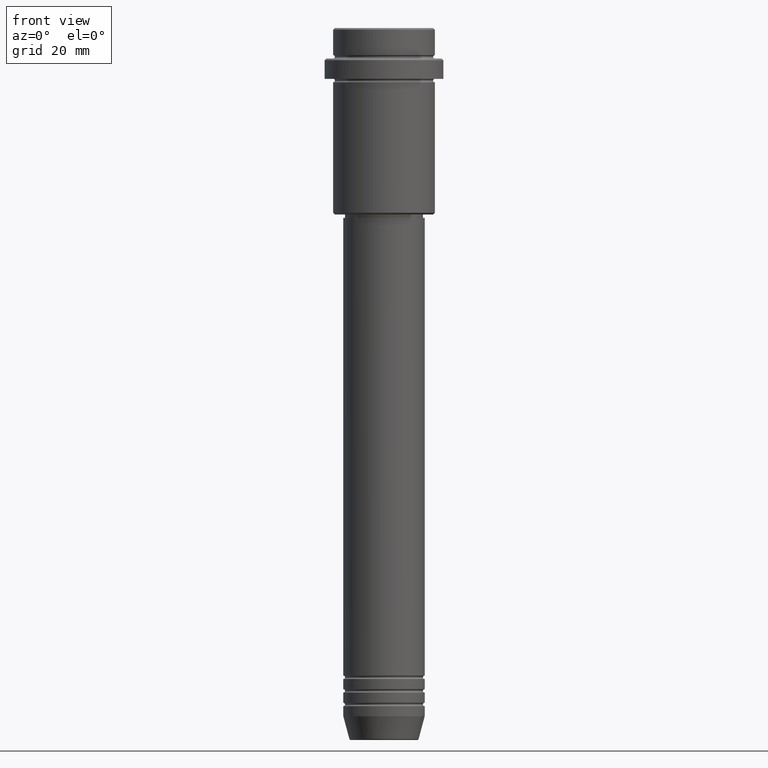
[diagram: clean part render]
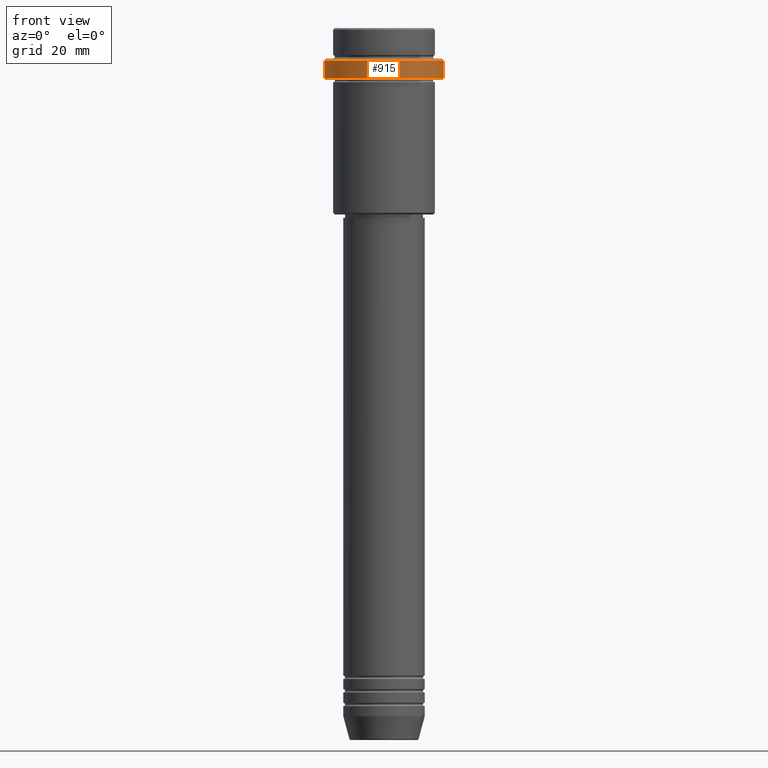
[diagram: same view with one face highlighted and labeled with its STEP entity id]
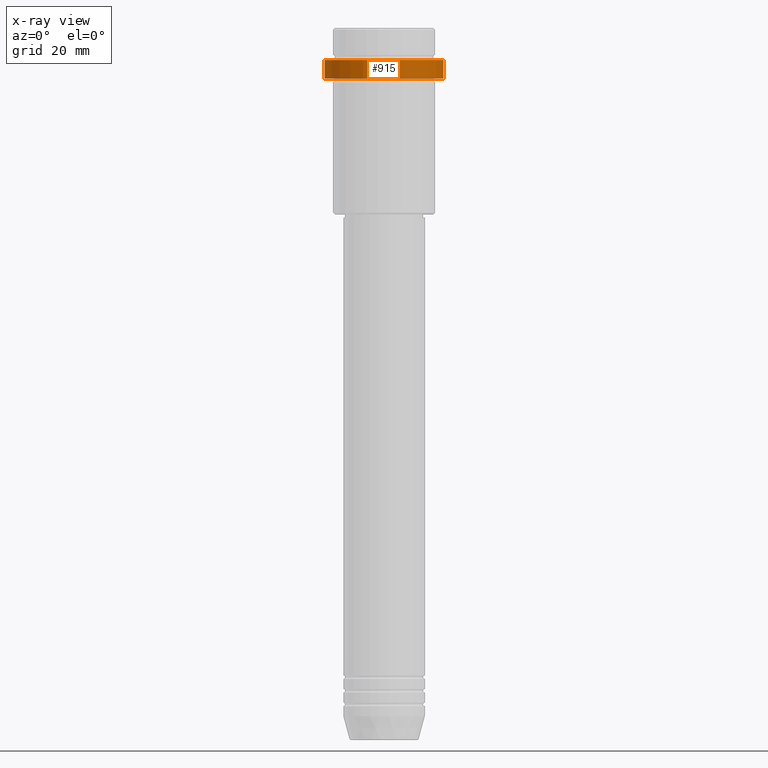
[diagram: x-ray of the same camera — body ghosted, the highlighted face saturated]
A machine part, front view. The second image highlights one B-rep face of the part: STEP entity #915.
The next image is the same camera in x-ray: the body ghosted, the highlighted face saturated — about 0% of this face is hidden behind the body in this view.
In plain terms, the highlighted cylindrical surface (partial cylindrical patch) has radius 17.5 mm, axis along (-0, -0, 1).
Its self-contained STEP definition (entity closure, byte-faithful):
#9 = DIRECTION ( 'NONE',  ( 1.000000000000000000, 0.000000000000000000, 0.000000000000000000 ) ) ;
#27 = EDGE_CURVE ( 'NONE', #432, #919, #208, .T. ) ;
#85 = CARTESIAN_POINT ( 'NONE',  ( 17.50000000000000000, 0.000000000000000000, -15.00000000000000178 ) ) ;
#112 = CARTESIAN_POINT ( 'NONE',  ( -17.50000000000000000, 2.143131898507868248E-15, -9.500000000000028422 ) ) ;
#147 = AXIS2_PLACEMENT_3D ( 'NONE', #1335, #814, #176 ) ;
#155 = VERTEX_POINT ( 'NONE', #1060 ) ;
#176 = DIRECTION ( 'NONE',  ( 1.000000000000000000, 0.000000000000000000, 0.000000000000000000 ) ) ;
#202 = DIRECTION ( 'NONE',  ( -0.000000000000000000, -0.000000000000000000, 1.000000000000000000 ) ) ;
#207 = CYLINDRICAL_SURFACE ( 'NONE', #286, 17.50000000000000000 ) ;
#208 = CIRCLE ( 'NONE', #147, 17.50000000000000000 ) ;
#226 = LINE ( 'NONE', #572, #776 ) ;
#286 = AXIS2_PLACEMENT_3D ( 'NONE', #418, #1187, #9 ) ;
#418 = CARTESIAN_POINT ( 'NONE',  ( 0.000000000000000000, 0.000000000000000000, 0.000000000000000000 ) ) ;
#432 = VERTEX_POINT ( 'NONE', #1364 ) ;
#572 = CARTESIAN_POINT ( 'NONE',  ( -17.50000000000000000, 2.143131898507868248E-15, 0.000000000000000000 ) ) ;
#587 = LINE ( 'NONE', #1102, #1070 ) ;
#624 = DIRECTION ( 'NONE',  ( 1.000000000000000000, 0.000000000000000000, 0.000000000000000000 ) ) ;
#641 = EDGE_CURVE ( 'NONE', #155, #919, #226, .T. ) ;
#646 = CARTESIAN_POINT ( 'NONE',  ( 0.000000000000000000, 0.000000000000000000, -15.00000000000000178 ) ) ;
#667 = DIRECTION ( 'NONE',  ( -0.000000000000000000, -0.000000000000000000, 1.000000000000000000 ) ) ;
#681 = EDGE_CURVE ( 'NONE', #155, #896, #1069, .T. ) ;
#751 = ORIENTED_EDGE ( 'NONE', *, *, #27, .T. ) ;
#755 = ORIENTED_EDGE ( 'NONE', *, *, #641, .F. ) ;
#765 = FACE_OUTER_BOUND ( 'NONE', #938, .T. ) ;
#776 = VECTOR ( 'NONE', #667, 1000.000000000000000 ) ;
#796 = ORIENTED_EDGE ( 'NONE', *, *, #681, .T. ) ;
#814 = DIRECTION ( 'NONE',  ( 0.000000000000000000, 0.000000000000000000, -1.000000000000000000 ) ) ;
#896 = VERTEX_POINT ( 'NONE', #85 ) ;
#903 = DIRECTION ( 'NONE',  ( -0.000000000000000000, -0.000000000000000000, 1.000000000000000000 ) ) ;
#915 = ADVANCED_FACE ( 'NONE', ( #765 ), #207, .T. ) ;
#919 = VERTEX_POINT ( 'NONE', #112 ) ;
#938 = EDGE_LOOP ( 'NONE', ( #755, #796, #1173, #751 ) ) ;
#939 = EDGE_CURVE ( 'NONE', #896, #432, #587, .T. ) ;
#1060 = CARTESIAN_POINT ( 'NONE',  ( -17.50000000000000000, 2.143131898507868248E-15, -15.00000000000000178 ) ) ;
#1069 = CIRCLE ( 'NONE', #1138, 17.50000000000000000 ) ;
#1070 = VECTOR ( 'NONE', #903, 1000.000000000000000 ) ;
#1102 = CARTESIAN_POINT ( 'NONE',  ( 17.50000000000000000, 0.000000000000000000, 0.000000000000000000 ) ) ;
#1138 = AXIS2_PLACEMENT_3D ( 'NONE', #646, #202, #624 ) ;
#1173 = ORIENTED_EDGE ( 'NONE', *, *, #939, .T. ) ;
#1187 = DIRECTION ( 'NONE',  ( -0.000000000000000000, -0.000000000000000000, 1.000000000000000000 ) ) ;
#1335 = CARTESIAN_POINT ( 'NONE',  ( 0.000000000000000000, 0.000000000000000000, -9.500000000000028422 ) ) ;
#1364 = CARTESIAN_POINT ( 'NONE',  ( 17.50000000000000000, 0.000000000000000000, -9.500000000000028422 ) ) ;